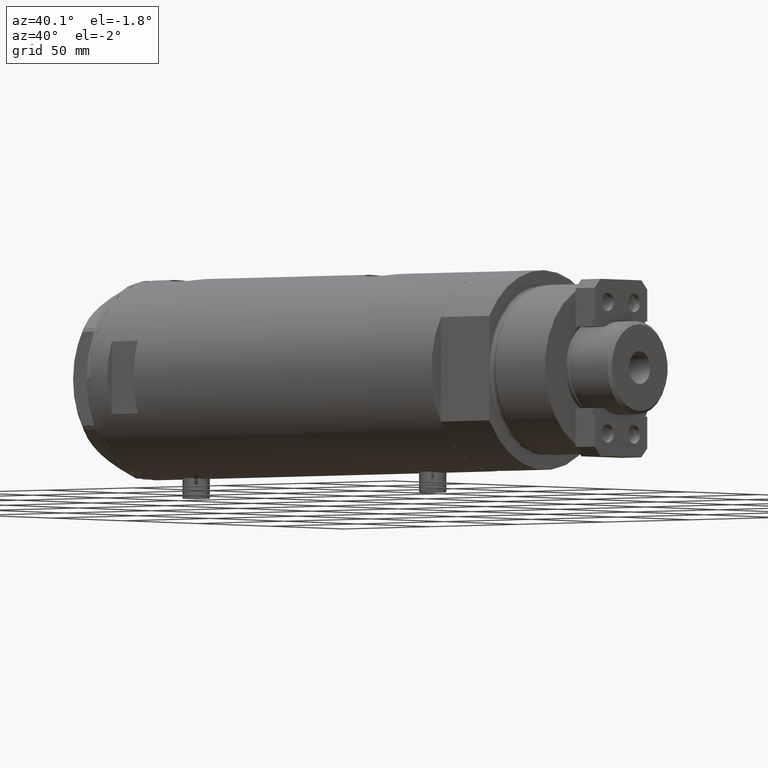
[diagram: clean part render]
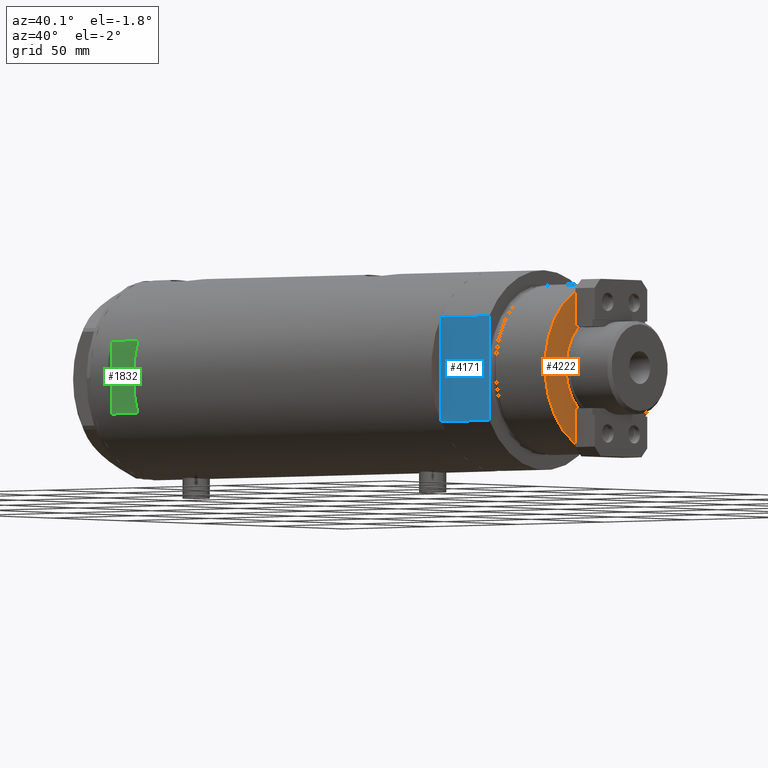
[diagram: same view with three faces highlighted in distinct colors, each labeled with its STEP entity id]
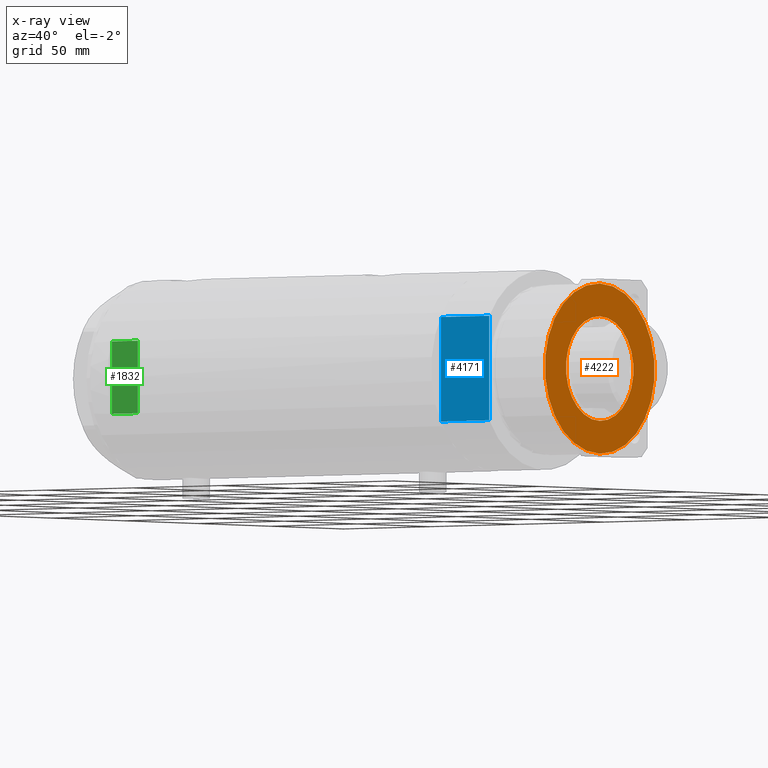
[diagram: x-ray of the same camera — body ghosted, the three highlighted faces saturated]
A machine part, auxiliary view with three faces highlighted in distinct colors.
The next image is the same camera in x-ray (body ghosted, the three faces saturated) — at least one of them is partly hidden behind the body in this view.
Their STEP definitions:

[orange] entity #4222 — the highlighted planar face has unit normal (1, 0, -0).
#112 = CARTESIAN_POINT ( 'NONE',  ( 0.000000000000000000, 0.000000000000000000, 59.89999999999999147 ) ) ;
#113 = CARTESIAN_POINT ( 'NONE',  ( 23.05000000000002913, 0.000000000000000000, 59.89999999999999147 ) ) ;
#140 = EDGE_CURVE ( 'NONE', #2100, #2990, #4387, .T. ) ;
#225 = DIRECTION ( 'NONE',  ( 0.000000000000000000, 0.000000000000000000, 1.000000000000000000 ) ) ;
#344 = ORIENTED_EDGE ( 'NONE', *, *, #2268, .T. ) ;
#699 = CARTESIAN_POINT ( 'NONE',  ( 0.000000000000000000, 0.000000000000000000, 59.89999999999999147 ) ) ;
#701 = CARTESIAN_POINT ( 'NONE',  ( -37.50000000000000711, 0.000000000000000000, 59.89999999999999147 ) ) ;
#713 = VERTEX_POINT ( 'NONE', #113 ) ;
#731 = AXIS2_PLACEMENT_3D ( 'NONE', #4509, #844, #4991 ) ;
#844 = DIRECTION ( 'NONE',  ( 0.000000000000000000, 0.000000000000000000, 1.000000000000000000 ) ) ;
#916 = CIRCLE ( 'NONE', #731, 37.50000000000000711 ) ;
#1467 = ORIENTED_EDGE ( 'NONE', *, *, #140, .T. ) ;
#1654 = CARTESIAN_POINT ( 'NONE',  ( 0.000000000000000000, 0.000000000000000000, 59.89999999999999147 ) ) ;
#1685 = ORIENTED_EDGE ( 'NONE', *, *, #1756, .T. ) ;
#1756 = EDGE_CURVE ( 'NONE', #713, #1889, #3585, .T. ) ;
#1889 = VERTEX_POINT ( 'NONE', #5248 ) ;
#1925 = CARTESIAN_POINT ( 'NONE',  ( 0.000000000000000000, 0.000000000000000000, 59.89999999999999147 ) ) ;
#2100 = VERTEX_POINT ( 'NONE', #2542 ) ;
#2265 = PLANE ( 'NONE',  #4083 ) ;
#2268 = EDGE_CURVE ( 'NONE', #2990, #2100, #916, .T. ) ;
#2542 = CARTESIAN_POINT ( 'NONE',  ( 37.50000000000000711, 4.592425496802575156E-15, 59.89999999999999147 ) ) ;
#2742 = DIRECTION ( 'NONE',  ( -0.000000000000000000, -0.000000000000000000, -1.000000000000000000 ) ) ;
#2962 = ORIENTED_EDGE ( 'NONE', *, *, #3759, .T. ) ;
#2978 = AXIS2_PLACEMENT_3D ( 'NONE', #1654, #3305, #4902 ) ;
#2990 = VERTEX_POINT ( 'NONE', #701 ) ;
#3305 = DIRECTION ( 'NONE',  ( -0.000000000000000000, -0.000000000000000000, -1.000000000000000000 ) ) ;
#3523 = FACE_BOUND ( 'NONE', #4687, .T. ) ;
#3576 = DIRECTION ( 'NONE',  ( 1.000000000000000000, 0.000000000000000000, 0.000000000000000000 ) ) ;
#3585 = CIRCLE ( 'NONE', #2978, 23.05000000000002913 ) ;
#3604 = CIRCLE ( 'NONE', #4928, 23.05000000000002913 ) ;
#3759 = EDGE_CURVE ( 'NONE', #1889, #713, #3604, .T. ) ;
#3864 = FACE_OUTER_BOUND ( 'NONE', #4462, .T. ) ;
#4083 = AXIS2_PLACEMENT_3D ( 'NONE', #1925, #225, #5120 ) ;
#4222 = ADVANCED_FACE ( 'NONE', ( #3523, #3864 ), #2265, .T. ) ;
#4387 = CIRCLE ( 'NONE', #5077, 37.50000000000000711 ) ;
#4462 = EDGE_LOOP ( 'NONE', ( #344, #1467 ) ) ;
#4467 = DIRECTION ( 'NONE',  ( 0.000000000000000000, 0.000000000000000000, 1.000000000000000000 ) ) ;
#4495 = DIRECTION ( 'NONE',  ( 1.000000000000000000, 0.000000000000000000, 0.000000000000000000 ) ) ;
#4509 = CARTESIAN_POINT ( 'NONE',  ( 0.000000000000000000, 0.000000000000000000, 59.89999999999999147 ) ) ;
#4687 = EDGE_LOOP ( 'NONE', ( #1685, #2962 ) ) ;
#4902 = DIRECTION ( 'NONE',  ( 1.000000000000000000, 0.000000000000000000, 0.000000000000000000 ) ) ;
#4928 = AXIS2_PLACEMENT_3D ( 'NONE', #699, #2742, #3576 ) ;
#4991 = DIRECTION ( 'NONE',  ( 1.000000000000000000, 0.000000000000000000, 0.000000000000000000 ) ) ;
#5077 = AXIS2_PLACEMENT_3D ( 'NONE', #112, #4467, #4495 ) ;
#5120 = DIRECTION ( 'NONE',  ( 1.000000000000000000, 0.000000000000000000, -0.000000000000000000 ) ) ;
#5248 = CARTESIAN_POINT ( 'NONE',  ( -23.05000000000002913, 2.822810872034651791E-15, 59.89999999999999147 ) ) ;

[blue] entity #4171 — the highlighted planar face has unit normal (-0, 1, 0).
#58 = LINE ( 'NONE', #2188, #2822 ) ;
#149 = AXIS2_PLACEMENT_3D ( 'NONE', #199, #1062, #3111 ) ;
#199 = CARTESIAN_POINT ( 'NONE',  ( -23.01629857296780557, -37.50000000000000000, 0.000000000000000000 ) ) ;
#241 = EDGE_CURVE ( 'NONE', #1107, #2196, #711, .T. ) ;
#266 = CARTESIAN_POINT ( 'NONE',  ( 13.91941090707505957, -37.50000000000000000, 0.000000000000000000 ) ) ;
#621 = DIRECTION ( 'NONE',  ( -1.000000000000000000, -0.000000000000000000, -0.000000000000000000 ) ) ;
#711 = LINE ( 'NONE', #1970, #3981 ) ;
#868 = DIRECTION ( 'NONE',  ( -1.000000000000000000, -0.000000000000000000, -0.000000000000000000 ) ) ;
#1034 = LINE ( 'NONE', #5012, #1519 ) ;
#1062 = DIRECTION ( 'NONE',  ( -0.000000000000000000, 1.000000000000000000, 0.000000000000000000 ) ) ;
#1107 = VERTEX_POINT ( 'NONE', #5176 ) ;
#1112 = LINE ( 'NONE', #4683, #4757 ) ;
#1159 = EDGE_CURVE ( 'NONE', #2196, #4307, #1835, .T. ) ;
#1388 = LINE ( 'NONE', #3416, #2983 ) ;
#1393 = DIRECTION ( 'NONE',  ( -0.000000000000000000, -0.000000000000000000, 1.000000000000000000 ) ) ;
#1460 = ORIENTED_EDGE ( 'NONE', *, *, #1159, .F. ) ;
#1519 = VECTOR ( 'NONE', #621, 1000.000000000000000 ) ;
#1646 = CARTESIAN_POINT ( 'NONE',  ( 23.01629857296780557, -37.50000000000000000, 27.89999999999999858 ) ) ;
#1766 = ORIENTED_EDGE ( 'NONE', *, *, #241, .F. ) ;
#1784 = LINE ( 'NONE', #4766, #3845 ) ;
#1835 = LINE ( 'NONE', #2634, #3496 ) ;
#1898 = VERTEX_POINT ( 'NONE', #2845 ) ;
#1920 = DIRECTION ( 'NONE',  ( -1.000000000000000000, -0.000000000000000000, -0.000000000000000000 ) ) ;
#1970 = CARTESIAN_POINT ( 'NONE',  ( -23.01629857296780557, -37.50000000000000000, 0.000000000000000000 ) ) ;
#2103 = EDGE_CURVE ( 'NONE', #1898, #4589, #1034, .T. ) ;
#2163 = ORIENTED_EDGE ( 'NONE', *, *, #2103, .F. ) ;
#2188 = CARTESIAN_POINT ( 'NONE',  ( 23.01629857296780557, -37.50000000000000000, 0.000000000000000000 ) ) ;
#2196 = VERTEX_POINT ( 'NONE', #2388 ) ;
#2292 = ORIENTED_EDGE ( 'NONE', *, *, #3380, .T. ) ;
#2376 = ORIENTED_EDGE ( 'NONE', *, *, #2577, .T. ) ;
#2388 = CARTESIAN_POINT ( 'NONE',  ( -23.01629857296780557, -37.50000000000000000, 0.000000000000000000 ) ) ;
#2511 = VERTEX_POINT ( 'NONE', #3029 ) ;
#2577 = EDGE_CURVE ( 'NONE', #2511, #4307, #1784, .T. ) ;
#2634 = CARTESIAN_POINT ( 'NONE',  ( -23.01629857296780557, -37.50000000000000000, 0.000000000000000000 ) ) ;
#2737 = PLANE ( 'NONE',  #149 ) ;
#2778 = CARTESIAN_POINT ( 'NONE',  ( -23.01629857296780557, -37.50000000000000000, 27.89999999999999858 ) ) ;
#2822 = VECTOR ( 'NONE', #2941, 1000.000000000000000 ) ;
#2845 = CARTESIAN_POINT ( 'NONE',  ( 23.01629857296780557, -37.50000000000000000, 0.000000000000000000 ) ) ;
#2941 = DIRECTION ( 'NONE',  ( -0.000000000000000000, -0.000000000000000000, 1.000000000000000000 ) ) ;
#2983 = VECTOR ( 'NONE', #868, 1000.000000000000000 ) ;
#3029 = CARTESIAN_POINT ( 'NONE',  ( 0.000000000000000000, -37.50000000000000000, 27.89999999999999858 ) ) ;
#3111 = DIRECTION ( 'NONE',  ( 0.000000000000000000, -0.000000000000000000, 1.000000000000000000 ) ) ;
#3380 = EDGE_CURVE ( 'NONE', #4277, #2511, #1112, .T. ) ;
#3416 = CARTESIAN_POINT ( 'NONE',  ( -23.01629857296780557, -37.50000000000000000, 0.000000000000000000 ) ) ;
#3496 = VECTOR ( 'NONE', #1393, 1000.000000000000000 ) ;
#3548 = EDGE_LOOP ( 'NONE', ( #2292, #2376, #1460, #1766, #3691, #2163, #4772 ) ) ;
#3573 = EDGE_CURVE ( 'NONE', #1898, #4277, #58, .T. ) ;
#3619 = DIRECTION ( 'NONE',  ( -1.000000000000000000, -0.000000000000000000, -0.000000000000000000 ) ) ;
#3691 = ORIENTED_EDGE ( 'NONE', *, *, #4048, .F. ) ;
#3845 = VECTOR ( 'NONE', #4274, 1000.000000000000000 ) ;
#3981 = VECTOR ( 'NONE', #3619, 1000.000000000000000 ) ;
#4048 = EDGE_CURVE ( 'NONE', #4589, #1107, #1388, .T. ) ;
#4171 = ADVANCED_FACE ( 'NONE', ( #4284 ), #2737, .F. ) ;
#4274 = DIRECTION ( 'NONE',  ( -1.000000000000000000, -0.000000000000000000, -0.000000000000000000 ) ) ;
#4277 = VERTEX_POINT ( 'NONE', #1646 ) ;
#4284 = FACE_OUTER_BOUND ( 'NONE', #3548, .T. ) ;
#4307 = VERTEX_POINT ( 'NONE', #2778 ) ;
#4589 = VERTEX_POINT ( 'NONE', #266 ) ;
#4683 = CARTESIAN_POINT ( 'NONE',  ( -23.01629857296780557, -37.50000000000000000, 27.89999999999999858 ) ) ;
#4757 = VECTOR ( 'NONE', #1920, 1000.000000000000000 ) ;
#4766 = CARTESIAN_POINT ( 'NONE',  ( -23.01629857296780557, -37.50000000000000000, 27.89999999999999858 ) ) ;
#4772 = ORIENTED_EDGE ( 'NONE', *, *, #3573, .T. ) ;
#5012 = CARTESIAN_POINT ( 'NONE',  ( -23.01629857296780557, -37.50000000000000000, 0.000000000000000000 ) ) ;
#5176 = CARTESIAN_POINT ( 'NONE',  ( -13.91941090707505957, -37.50000000000000000, 0.000000000000000000 ) ) ;

[green] entity #1832 — the highlighted planar face has unit normal (-0, 1, 0).
#102 = EDGE_CURVE ( 'NONE', #455, #2683, #4383, .T. ) ;
#235 = CARTESIAN_POINT ( 'NONE',  ( -15.96871942267132027, -40.99999999999999289, -98.20000000000000284 ) ) ;
#455 = VERTEX_POINT ( 'NONE', #5200 ) ;
#497 = ORIENTED_EDGE ( 'NONE', *, *, #4091, .F. ) ;
#557 = VECTOR ( 'NONE', #1776, 1000.000000000000000 ) ;
#584 = LINE ( 'NONE', #235, #557 ) ;
#773 = CARTESIAN_POINT ( 'NONE',  ( -44.00000000000000000, -40.99999999999999289, 88.20000000000000284 ) ) ;
#1092 = VECTOR ( 'NONE', #4240, 1000.000000000000000 ) ;
#1178 = EDGE_CURVE ( 'NONE', #4363, #1437, #584, .T. ) ;
#1304 = CARTESIAN_POINT ( 'NONE',  ( -44.00000000000000000, -40.99999999999999289, 88.20000000000000284 ) ) ;
#1437 = VERTEX_POINT ( 'NONE', #2865 ) ;
#1776 = DIRECTION ( 'NONE',  ( -0.000000000000000000, -0.000000000000000000, -1.000000000000000000 ) ) ;
#1832 = ADVANCED_FACE ( 'NONE', ( #1921 ), #3568, .F. ) ;
#1903 = ORIENTED_EDGE ( 'NONE', *, *, #2303, .T. ) ;
#1921 = FACE_OUTER_BOUND ( 'NONE', #2177, .T. ) ;
#2123 = LINE ( 'NONE', #1304, #2468 ) ;
#2177 = EDGE_LOOP ( 'NONE', ( #5230, #1903, #2534, #497 ) ) ;
#2303 = EDGE_CURVE ( 'NONE', #1437, #455, #4557, .T. ) ;
#2468 = VECTOR ( 'NONE', #3790, 1000.000000000000000 ) ;
#2534 = ORIENTED_EDGE ( 'NONE', *, *, #102, .T. ) ;
#2683 = VERTEX_POINT ( 'NONE', #4273 ) ;
#2775 = DIRECTION ( 'NONE',  ( 0.000000000000000000, 0.000000000000000000, 1.000000000000000000 ) ) ;
#2865 = CARTESIAN_POINT ( 'NONE',  ( -15.96871942267132027, -40.99999999999999289, 73.19999999999998863 ) ) ;
#2997 = CARTESIAN_POINT ( 'NONE',  ( -15.96871942267132027, -40.99999999999999289, 88.20000000000000284 ) ) ;
#3316 = VECTOR ( 'NONE', #2775, 1000.000000000000000 ) ;
#3568 = PLANE ( 'NONE',  #5166 ) ;
#3790 = DIRECTION ( 'NONE',  ( 1.000000000000000000, -0.000000000000000000, -0.000000000000000000 ) ) ;
#4056 = DIRECTION ( 'NONE',  ( 0.000000000000000000, 1.000000000000000000, 0.000000000000000000 ) ) ;
#4091 = EDGE_CURVE ( 'NONE', #4363, #2683, #2123, .T. ) ;
#4240 = DIRECTION ( 'NONE',  ( 1.000000000000000000, -0.000000000000000000, -0.000000000000000000 ) ) ;
#4273 = CARTESIAN_POINT ( 'NONE',  ( 15.96871942267132027, -40.99999999999999289, 88.20000000000000284 ) ) ;
#4363 = VERTEX_POINT ( 'NONE', #2997 ) ;
#4383 = LINE ( 'NONE', #4783, #3316 ) ;
#4557 = LINE ( 'NONE', #4634, #1092 ) ;
#4634 = CARTESIAN_POINT ( 'NONE',  ( -44.00000000000000000, -40.99999999999999289, 73.20000000000000284 ) ) ;
#4783 = CARTESIAN_POINT ( 'NONE',  ( 15.96871942267132027, -40.99999999999999289, -98.20000000000000284 ) ) ;
#5110 = DIRECTION ( 'NONE',  ( 0.000000000000000000, -0.000000000000000000, 1.000000000000000000 ) ) ;
#5166 = AXIS2_PLACEMENT_3D ( 'NONE', #773, #4056, #5110 ) ;
#5200 = CARTESIAN_POINT ( 'NONE',  ( 15.96871942267132027, -40.99999999999999289, 73.19999999999998863 ) ) ;
#5230 = ORIENTED_EDGE ( 'NONE', *, *, #1178, .T. ) ;